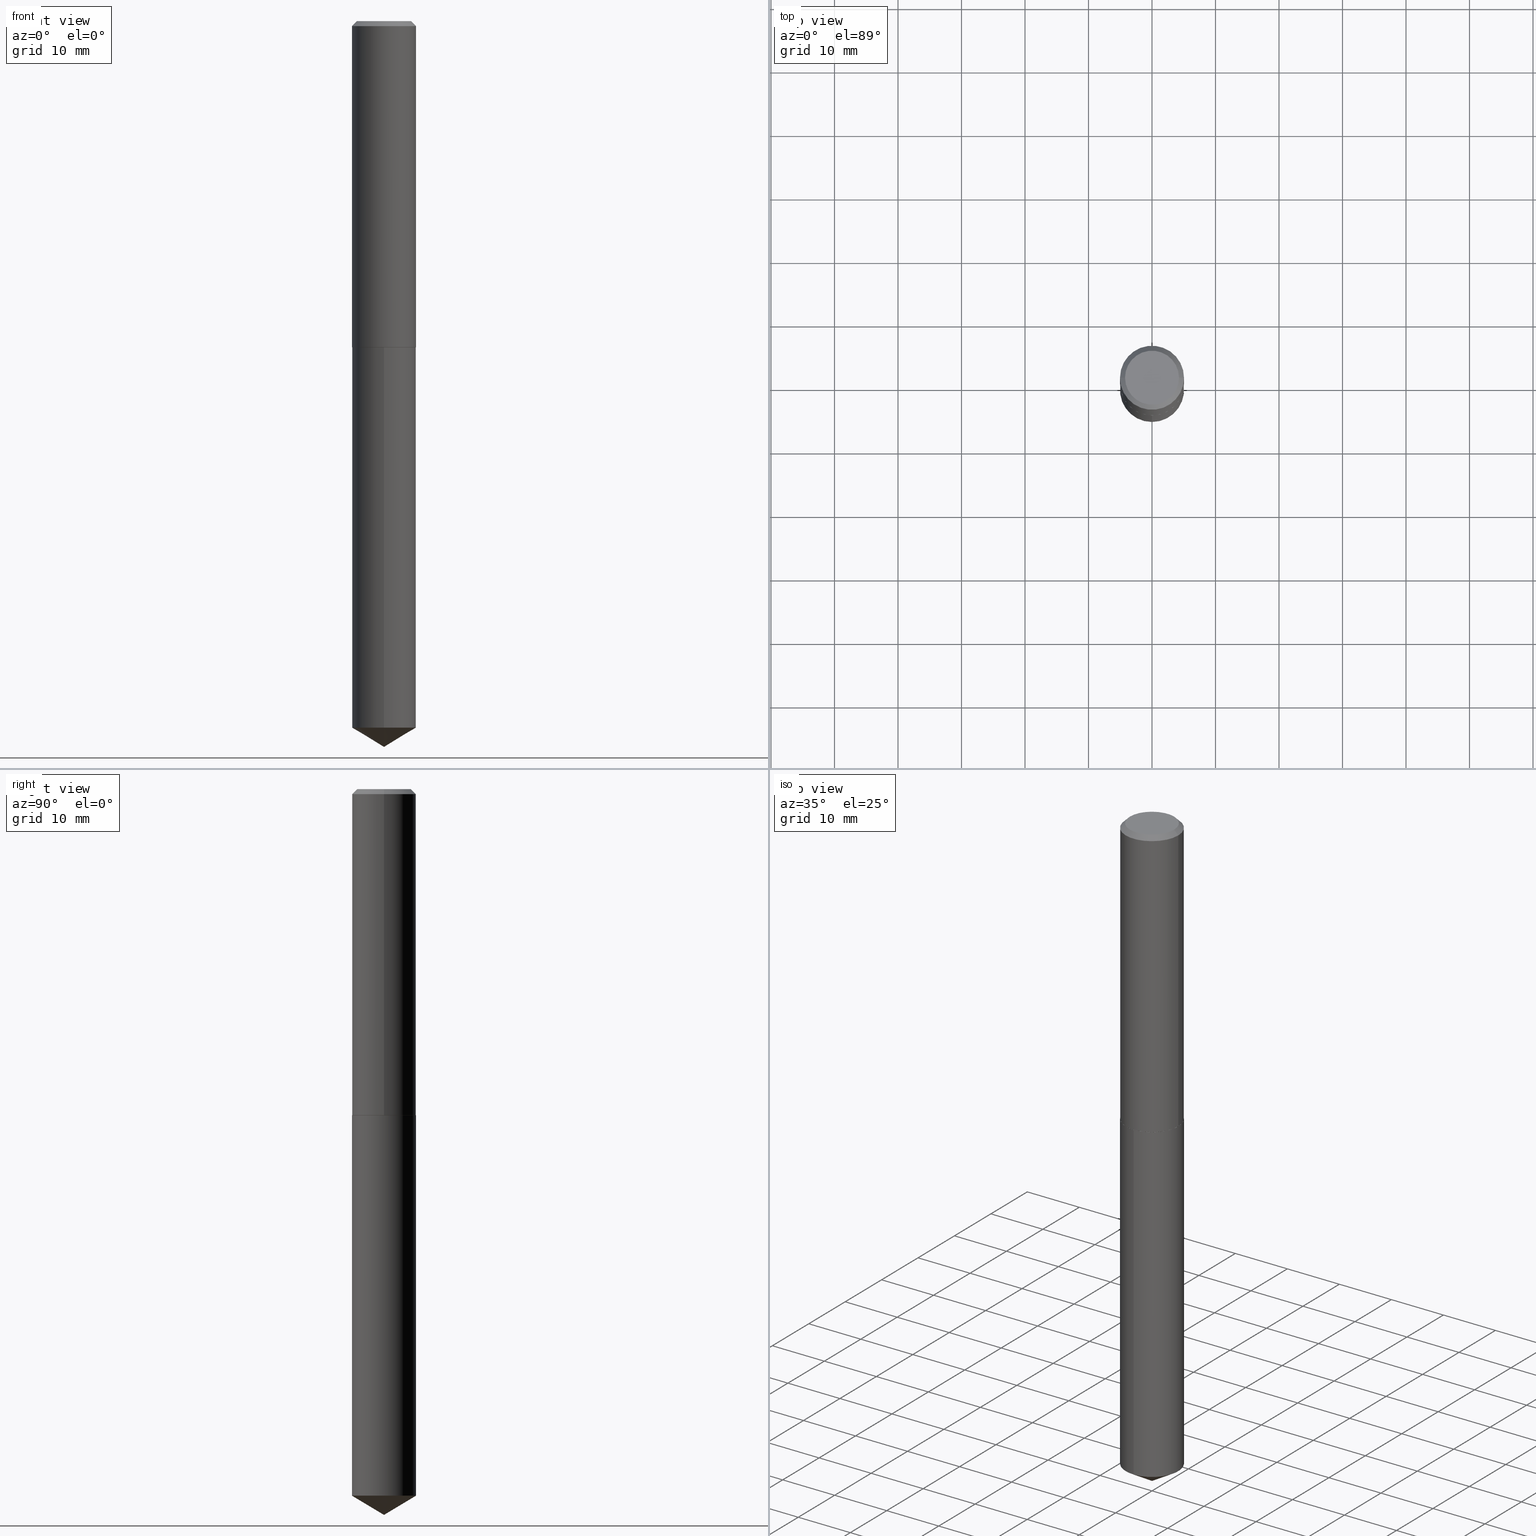
[diagram: canonical four-view strip — front | top / right | iso, engineering-drawing reading convention]
A machine part, canonical four-view strip (front | top / right | iso — engineering-drawing reading convention). The complete STEP part file that produces these views, byte-faithful:
ISO-10303-21;
HEADER;
FILE_DESCRIPTION (( 'STEP AP203' ),
    '1' );
FILE_NAME ('57204.STEP',
    '2024-04-22T23:57:25',
    ( '' ),
    ( '' ),
    'SwSTEP 2.0',
    'SolidWorks 2023',
    '' );
FILE_SCHEMA (( 'CONFIG_CONTROL_DESIGN' ));
ENDSEC;

DATA;
#1 = PERSON_AND_ORGANIZATION_ROLE ( 'creator' ) ;
#2 = VERTEX_POINT ( 'NONE', #85 ) ;
#3 = DIRECTION ( 'NONE',  ( 1.000000000000000000, 0.000000000000000000, 0.000000000000000000 ) ) ;
#4 = CIRCLE ( 'NONE', #323, 0.1985000000000000098 ) ;
#5 = ORIENTED_EDGE ( 'NONE', *, *, #11, .F. ) ;
#6 = VERTEX_POINT ( 'NONE', #364 ) ;
#7 = DIRECTION ( 'NONE',  ( -2.438088387897960049E-29, 3.491481338843145188E-15, 1.000000000000000000 ) ) ;
#8 = CARTESIAN_POINT ( 'NONE',  ( -1.386118091520674425E-15, -0.1985000000000070874, -2.021999999999999797 ) ) ;
#9 = AXIS2_PLACEMENT_3D ( 'NONE', #175, #294, #3 ) ;
#10 = CARTESIAN_POINT ( 'NONE',  ( 4.944737926106347490E-29, -7.059775267140842055E-15, -2.022000000000000242 ) ) ;
#11 = EDGE_CURVE ( 'NONE', #6, #304, #38, .T. ) ;
#12 = DIRECTION ( 'NONE',  ( -2.445399694485218143E-29, 3.491580310731022583E-15, 1.000000000000000000 ) ) ;
#13 = DIRECTION ( 'NONE',  ( -2.445399694485218143E-29, 3.491580310731022583E-15, 1.000000000000000000 ) ) ;
#14 = APPROVAL ( #39, 'UNSPECIFIED' ) ;
#15 = AXIS2_PLACEMENT_3D ( 'NONE', #49, #319, #51 ) ;
#16 = DIRECTION ( 'NONE',  ( -2.445399694485218423E-29, 3.491580310731022583E-15, 1.000000000000000000 ) ) ;
#17 = CARTESIAN_POINT ( 'NONE',  ( 1.100429862518348094E-28, -1.571211139828960300E-14, -4.500000000000000000 ) ) ;
#18 = DIRECTION ( 'NONE',  ( -2.445468806185136597E-29, 3.491481338843145583E-15, 1.000000000000000000 ) ) ;
#19 = AXIS2_PLACEMENT_3D ( 'NONE', #71, #312, #240 ) ;
#20 = AXIS2_PLACEMENT_3D ( 'NONE', #135, #327, #203 ) ;
#21 = DIRECTION ( 'NONE',  ( 1.000000000000000000, -6.982962677686266711E-15, 4.876176775795935232E-29 ) ) ;
#22 = EDGE_CURVE ( 'NONE', #270, #113, #238, .T. ) ;
#23 = DIRECTION ( 'NONE',  ( -0.7071067811864992780, 7.493145998870180611E-15, 0.7071067811865957564 ) ) ;
#24 = MANIFOLD_SOLID_BREP ( 'Body-Move/Copy2[2]', #356 ) ;
#25 = ORIENTED_EDGE ( 'NONE', *, *, #220, .F. ) ;
#26 = VECTOR ( 'NONE', #341, 39.37007874015748143 ) ;
#27 = APPROVAL_STATUS ( 'not_yet_approved' ) ;
#28 = ADVANCED_BREP_SHAPE_REPRESENTATION ( '57204', ( #155, #24, #9 ), #97 ) ;
#29 = EDGE_LOOP ( 'NONE', ( #337, #204, #235, #233 ) ) ;
#30 = DATE_TIME_ROLE ( 'creation_date' ) ;
#31 = VERTEX_POINT ( 'NONE', #309 ) ;
#32 = ORIENTED_EDGE ( 'NONE', *, *, #225, .F. ) ;
#33 = PERSON_AND_ORGANIZATION_ROLE ( 'creator' ) ;
#34 = ORIENTED_EDGE ( 'NONE', *, *, #346, .T. ) ;
#35 = CIRCLE ( 'NONE', #259, 0.1980000000000004534 ) ;
#36 =( CONVERSION_BASED_UNIT ( 'INCH', #62 ) LENGTH_UNIT ( ) NAMED_UNIT ( #277 ) );
#37 = ORGANIZATION ( 'UNSPECIFIED', 'UNSPECIFIED', '' ) ;
#38 = LINE ( 'NONE', #118, #150 ) ;
#39 = APPROVAL_STATUS ( 'not_yet_approved' ) ;
#40 = LINE ( 'NONE', #152, #26 ) ;
#41 = DIRECTION ( 'NONE',  ( -6.982962677686265922E-15, -1.000000000000000000, 2.752491681273816674E-15 ) ) ;
#42 = EDGE_CURVE ( 'NONE', #31, #113, #121, .T. ) ;
#43 = AXIS2_PLACEMENT_3D ( 'NONE', #247, #217, #370 ) ;
#44 = DIRECTION ( 'NONE',  ( -2.445468806185136597E-29, 3.491481338843145583E-15, 1.000000000000000000 ) ) ;
#45 = CIRCLE ( 'NONE', #163, 0.1985000000000002873 ) ;
#46 = CARTESIAN_POINT ( 'NONE',  ( 0.1985000000000002873, -8.444147617992146450E-15, -2.021500000000000519 ) ) ;
#47 = DIRECTION ( 'NONE',  ( -2.445399694485218143E-29, 3.491580310731022583E-15, 1.000000000000000000 ) ) ;
#48 = CARTESIAN_POINT ( 'NONE',  ( 0.000000000000000000, 0.000000000000000000, 0.000000000000000000 ) ) ;
#49 = CARTESIAN_POINT ( 'NONE',  ( -8.527114015399936680E-28, 1.217518804839315575E-13, 34.87007874015748143 ) ) ;
#50 = CARTESIAN_POINT ( 'NONE',  ( -4.791736873455011139E-48, 6.841330313435283607E-34, 1.959434878635801334E-19 ) ) ;
#51 = DIRECTION ( 'NONE',  ( -6.982962677686264344E-15, -1.000000000000000000, 3.468864327941589087E-15 ) ) ;
#52 = CIRCLE ( 'NONE', #253, 0.1672500000000000098 ) ;
#53 = FACE_OUTER_BOUND ( 'NONE', #29, .T. ) ;
#54 = PERSON_AND_ORGANIZATION ( #251, #37 ) ;
#55 = DESIGN_CONTEXT ( 'detailed design', #372, 'design' ) ;
#56 = ORIENTED_EDGE ( 'NONE', *, *, #174, .F. ) ;
#57 = ORIENTED_EDGE ( 'NONE', *, *, #248, .T. ) ;
#58 = ORIENTED_EDGE ( 'NONE', *, *, #108, .T. ) ;
#59 = AXIS2_PLACEMENT_3D ( 'NONE', #315, #101, #381 ) ;
#60 =( LENGTH_UNIT ( ) NAMED_UNIT ( * ) SI_UNIT ( $, .METRE. ) );
#61 = ORIENTED_EDGE ( 'NONE', *, *, #346, .F. ) ;
#62 = LENGTH_MEASURE_WITH_UNIT ( LENGTH_MEASURE( 0.02539999999999999897 ), #60 );
#63 = EDGE_LOOP ( 'NONE', ( #61, #266, #325, #207 ) ) ;
#64 = SECURITY_CLASSIFICATION_LEVEL ( 'unclassified' ) ;
#65 = ORIENTED_EDGE ( 'NONE', *, *, #273, .T. ) ;
#66 = VECTOR ( 'NONE', #252, 39.37007874015748143 ) ;
#67 = CARTESIAN_POINT ( 'NONE',  ( 1.071277351076237585E-28, -1.529546758541459341E-14, -4.380729167123029733 ) ) ;
#68 = CARTESIAN_POINT ( 'NONE',  ( 4.944737926106347490E-29, -7.059775267140842055E-15, -2.022000000000000242 ) ) ;
#69 = APPROVAL ( #27, 'UNSPECIFIED' ) ;
#70 = CARTESIAN_POINT ( 'NONE',  ( 4.944737926106347490E-29, -7.059775267140842055E-15, -2.022000000000000242 ) ) ;
#71 = CARTESIAN_POINT ( 'NONE',  ( 7.642090019328601786E-31, -1.091087918388490144E-16, -0.03125000000000020123 ) ) ;
#72 = LOCAL_TIME ( 19, 57, 25.00000000000000000, #336 ) ;
#73 = DIRECTION ( 'NONE',  ( -0.7071067811865453523, 2.468850131082234184E-15, -0.7071067811865496822 ) ) ;
#74 = CARTESIAN_POINT ( 'NONE',  ( 1.100429862518348094E-28, -1.571211139828960300E-14, -4.500000000000000000 ) ) ;
#75 = FACE_OUTER_BOUND ( 'NONE', #326, .T. ) ;
#76 = VECTOR ( 'NONE', #73, 39.37007874015748143 ) ;
#77 = CIRCLE ( 'NONE', #255, 0.1980000000000004534 ) ;
#78 = FACE_OUTER_BOUND ( 'NONE', #167, .T. ) ;
#79 = DIRECTION ( 'NONE',  ( 1.000000000000000000, -6.982962677686268288E-15, 0.000000000000000000 ) ) ;
#80 = CARTESIAN_POINT ( 'NONE',  ( -1.386118091520674425E-15, -0.1985000000000070874, -2.021999999999999797 ) ) ;
#81 = VECTOR ( 'NONE', #86, 39.37007874015748854 ) ;
#82 = CC_DESIGN_APPROVAL ( #69, ( #236 ) ) ;
#83 = PRODUCT_RELATED_PRODUCT_CATEGORY ( 'detail', '', ( #94 ) ) ;
#84 = VERTEX_POINT ( 'NONE', #243 ) ;
#85 = CARTESIAN_POINT ( 'NONE',  ( -0.1672500000000000098, 1.222454903762451656E-15, 3.918869757188020196E-19 ) ) ;
#86 = DIRECTION ( 'NONE',  ( 6.090539988449780802E-15, 0.8571673007021143320, 0.5150380749100504918 ) ) ;
#87 = EDGE_LOOP ( 'NONE', ( #147, #335 ) ) ;
#88 = APPROVAL_DATE_TIME ( #206, #69 ) ;
#89 = ORIENTED_EDGE ( 'NONE', *, *, #368, .F. ) ;
#90 = ORIENTED_EDGE ( 'NONE', *, *, #119, .F. ) ;
#91 = AXIS2_PLACEMENT_3D ( 'NONE', #67, #12, #280 ) ;
#92 = APPROVAL_ROLE ( '' ) ;
#93 = LINE ( 'NONE', #8, #385 ) ;
#94 = PRODUCT ( '57204', '57204', '', ( #299 ) ) ;
#95 = DIRECTION ( 'NONE',  ( 1.000000000000000000, -6.982962677686267499E-15, 4.876176858485898441E-29 ) ) ;
#96 = LINE ( 'NONE', #348, #351 ) ;
#97 =( GEOMETRIC_REPRESENTATION_CONTEXT ( 3 ) GLOBAL_UNCERTAINTY_ASSIGNED_CONTEXT ( ( #342 ) ) GLOBAL_UNIT_ASSIGNED_CONTEXT ( ( #36, #115, #146 ) ) REPRESENTATION_CONTEXT ( 'NONE', 'WORKASPACE' ) );
#98 = CARTESIAN_POINT ( 'NONE',  ( -0.1980000000000004534, -5.650251423161728870E-15, -2.022000000000000242 ) ) ;
#99 = CIRCLE ( 'NONE', #156, 0.1985000000000000098 ) ;
#100 = EDGE_CURVE ( 'NONE', #306, #263, #331, .T. ) ;
#101 = DIRECTION ( 'NONE',  ( -2.445468806185136597E-29, 3.491481338843145583E-15, 1.000000000000000000 ) ) ;
#102 = CARTESIAN_POINT ( 'NONE',  ( 1.410427330483906421E-15, 0.1984999999999929321, -2.022000000000001130 ) ) ;
#103 = CC_DESIGN_PERSON_AND_ORGANIZATION_ASSIGNMENT ( #208, #179, ( #322 ) ) ;
#104 = DIRECTION ( 'NONE',  ( -2.445399694485218143E-29, 3.491580310731022583E-15, 1.000000000000000000 ) ) ;
#105 = AXIS2_PLACEMENT_3D ( 'NONE', #10, #7, #377 ) ;
#106 = EDGE_CURVE ( 'NONE', #144, #84, #35, .T. ) ;
#107 = CARTESIAN_POINT ( 'NONE',  ( 0.1985000000000000098, -1.470917644396498212E-15, -0.03125000000000020123 ) ) ;
#108 = EDGE_CURVE ( 'NONE', #202, #6, #345, .T. ) ;
#109 = DATE_AND_TIME ( #305, #72 ) ;
#110 = APPLICATION_PROTOCOL_DEFINITION ( 'international standard', 'config_control_design', 1994, #372 ) ;
#111 = ORIENTED_EDGE ( 'NONE', *, *, #290, .F. ) ;
#112 = APPROVAL_DATE_TIME ( #334, #190 ) ;
#113 = VERTEX_POINT ( 'NONE', #314 ) ;
#114 = EDGE_LOOP ( 'NONE', ( #367, #261, #176, #199 ) ) ;
#115 =( NAMED_UNIT ( * ) PLANE_ANGLE_UNIT ( ) SI_UNIT ( $, .RADIAN. ) );
#116 = EDGE_LOOP ( 'NONE', ( #369, #198, #173, #32 ) ) ;
#117 = COORDINATED_UNIVERSAL_TIME_OFFSET ( 5, 0, .BEHIND. ) ;
#118 = CARTESIAN_POINT ( 'NONE',  ( -0.1985000000000001485, 1.410427330483799924E-15, -9.764086154155995580E-30 ) ) ;
#119 = EDGE_CURVE ( 'NONE', #140, #2, #197, .T. ) ;
#120 = FACE_OUTER_BOUND ( 'NONE', #63, .T. ) ;
#121 = CIRCLE ( 'NONE', #91, 0.1985000000000000098 ) ;
#122 = SHAPE_DEFINITION_REPRESENTATION ( #281, #28 ) ;
#123 = APPROVAL_PERSON_ORGANIZATION ( #54, #69, #386 ) ;
#124 = DIRECTION ( 'NONE',  ( 1.000000000000000000, -6.982962677686268288E-15, 0.000000000000000000 ) ) ;
#125 = PERSON_AND_ORGANIZATION ( #251, #37 ) ;
#126 = DIRECTION ( 'NONE',  ( -2.445399694485218143E-29, 3.491580310731022583E-15, 1.000000000000000000 ) ) ;
#127 = PLANE ( 'NONE',  #43 ) ;
#128 = ADVANCED_FACE ( 'NONE', ( #129 ), #149, .T. ) ;
#129 = FACE_OUTER_BOUND ( 'NONE', #116, .T. ) ;
#130 = DIRECTION ( 'NONE',  ( -2.445468806185136597E-29, 3.491481338843145583E-15, 1.000000000000000000 ) ) ;
#131 = LINE ( 'NONE', #17, #363 ) ;
#132 = LINE ( 'NONE', #107, #66 ) ;
#133 = CARTESIAN_POINT ( 'NONE',  ( 7.642090019328601786E-31, -1.091087918388490144E-16, -0.03125000000000020123 ) ) ;
#134 = CARTESIAN_POINT ( 'NONE',  ( 4.944737926106347490E-29, -7.059775267140842055E-15, -2.022000000000000242 ) ) ;
#135 = CARTESIAN_POINT ( 'NONE',  ( 4.943515191703255249E-29, -7.058029526471420552E-15, -2.021500000000000519 ) ) ;
#136 = EDGE_LOOP ( 'NONE', ( #5, #65, #143, #89 ) ) ;
#137 = AXIS2_PLACEMENT_3D ( 'NONE', #212, #373, #154 ) ;
#138 = PRODUCT_DEFINITION_FORMATION_WITH_SPECIFIED_SOURCE ( 'ANY', '', #94, .NOT_KNOWN. ) ;
#139 = CALENDAR_DATE ( 2024, 22, 4 ) ;
#140 = VERTEX_POINT ( 'NONE', #182 ) ;
#141 = EDGE_CURVE ( 'NONE', #84, #202, #40, .T. ) ;
#142 = ORIENTED_EDGE ( 'NONE', *, *, #303, .T. ) ;
#143 = ORIENTED_EDGE ( 'NONE', *, *, #220, .T. ) ;
#144 = VERTEX_POINT ( 'NONE', #98 ) ;
#145 = AXIS2_PLACEMENT_3D ( 'NONE', #50, #160, #256 ) ;
#146 =( NAMED_UNIT ( * ) SI_UNIT ( $, .STERADIAN. ) SOLID_ANGLE_UNIT ( ) );
#147 = ORIENTED_EDGE ( 'NONE', *, *, #178, .T. ) ;
#148 = DIRECTION ( 'NONE',  ( -2.445468806185136877E-29, 3.491481338843145188E-15, 1.000000000000000000 ) ) ;
#149 = CYLINDRICAL_SURFACE ( 'NONE', #241, 0.1985000000000000098 ) ;
#150 = VECTOR ( 'NONE', #201, 39.37007874015748143 ) ;
#151 = APPROVAL_PERSON_ORGANIZATION ( #125, #14, #92 ) ;
#152 = CARTESIAN_POINT ( 'NONE',  ( 0.1985000000000002873, -8.444147617992146450E-15, -2.021500000000000519 ) ) ;
#153 = FACE_OUTER_BOUND ( 'NONE', #87, .T. ) ;
#154 = DIRECTION ( 'NONE',  ( 1.000000000000000000, -6.982962677686266711E-15, 0.000000000000000000 ) ) ;
#155 = MANIFOLD_SOLID_BREP ( 'Body-Move/Copy2[1]', #338 ) ;
#156 = AXIS2_PLACEMENT_3D ( 'NONE', #189, #13, #41 ) ;
#157 = FACE_OUTER_BOUND ( 'NONE', #229, .T. ) ;
#158 = CC_DESIGN_PERSON_AND_ORGANIZATION_ASSIGNMENT ( #302, #33, ( #138 ) ) ;
#159 = ADVANCED_FACE ( 'NONE', ( #249 ), #344, .F. ) ;
#160 = DIRECTION ( 'NONE',  ( 2.438088387897960049E-29, -3.491481338843145188E-15, -1.000000000000000000 ) ) ;
#161 = PLANE ( 'NONE',  #145 ) ;
#162 = CYLINDRICAL_SURFACE ( 'NONE', #296, 0.1985000000000001485 ) ;
#163 = AXIS2_PLACEMENT_3D ( 'NONE', #191, #195, #285 ) ;
#164 = CC_DESIGN_DATE_AND_TIME_ASSIGNMENT ( #109, #227, ( #322 ) ) ;
#165 = DIRECTION ( 'NONE',  ( -5.985567269335945224E-15, -0.8571673007021107793, 0.5150380749100564870 ) ) ;
#166 = EDGE_CURVE ( 'NONE', #2, #140, #52, .T. ) ;
#167 = EDGE_LOOP ( 'NONE', ( #111, #169, #265 ) ) ;
#168 = PERSON_AND_ORGANIZATION ( #251, #37 ) ;
#169 = ORIENTED_EDGE ( 'NONE', *, *, #22, .T. ) ;
#170 = PERSON_AND_ORGANIZATION ( #251, #37 ) ;
#171 = ORIENTED_EDGE ( 'NONE', *, *, #166, .T. ) ;
#172 = VECTOR ( 'NONE', #148, 39.37007874015748143 ) ;
#173 = ORIENTED_EDGE ( 'NONE', *, *, #178, .F. ) ;
#174 = EDGE_CURVE ( 'NONE', #2, #304, #339, .T. ) ;
#175 = CARTESIAN_POINT ( 'NONE',  ( 0.000000000000000000, 0.000000000000000000, 0.000000000000000000 ) ) ;
#176 = ORIENTED_EDGE ( 'NONE', *, *, #225, .T. ) ;
#177 = VERTEX_POINT ( 'NONE', #343 ) ;
#178 = EDGE_CURVE ( 'NONE', #263, #306, #295, .T. ) ;
#179 = PERSON_AND_ORGANIZATION_ROLE ( 'classification_officer' ) ;
#180 = EDGE_CURVE ( 'NONE', #113, #306, #96, .T. ) ;
#181 = CONICAL_SURFACE ( 'NONE', #15, 65.52281426576853107, 1.029744258676655200 ) ;
#182 = CARTESIAN_POINT ( 'NONE',  ( 0.1672500000000000098, -1.309167967261893481E-15, 3.918869757358212700E-19 ) ) ;
#183 = CARTESIAN_POINT ( 'NONE',  ( -9.583473746910022278E-48, 1.368266062687056721E-33, 3.918869757271602667E-19 ) ) ;
#184 = DIRECTION ( 'NONE',  ( -2.445399694485218143E-29, 3.491580310731022583E-15, 1.000000000000000000 ) ) ;
#185 = CONICAL_SURFACE ( 'NONE', #19, 0.1985000000000000098, 0.7853981633974452814 ) ;
#186 = CC_DESIGN_APPROVAL ( #14, ( #322 ) ) ;
#187 = ADVANCED_FACE ( 'NONE', ( #120 ), #185, .T. ) ;
#188 = DIRECTION ( 'NONE',  ( -2.445468806185136597E-29, 3.491481338843145583E-15, 1.000000000000000000 ) ) ;
#189 = CARTESIAN_POINT ( 'NONE',  ( 1.071277351076237585E-28, -1.529546758541459341E-14, -4.380729167123029733 ) ) ;
#190 = APPROVAL ( #232, 'UNSPECIFIED' ) ;
#191 = CARTESIAN_POINT ( 'NONE',  ( 4.943515191703255249E-29, -7.058029526471420552E-15, -2.021500000000000519 ) ) ;
#192 = AXIS2_PLACEMENT_3D ( 'NONE', #183, #44, #95 ) ;
#193 = CYLINDRICAL_SURFACE ( 'NONE', #211, 0.1985000000000001485 ) ;
#194 = CYLINDRICAL_SURFACE ( 'NONE', #269, 0.1985000000000000098 ) ;
#195 = DIRECTION ( 'NONE',  ( -2.445468806185136597E-29, 3.491481338843145583E-15, 1.000000000000000000 ) ) ;
#196 = FACE_OUTER_BOUND ( 'NONE', #114, .T. ) ;
#197 = CIRCLE ( 'NONE', #192, 0.1672500000000000098 ) ;
#198 = ORIENTED_EDGE ( 'NONE', *, *, #180, .T. ) ;
#199 = ORIENTED_EDGE ( 'NONE', *, *, #100, .F. ) ;
#200 = CALENDAR_DATE ( 2024, 22, 4 ) ;
#201 = DIRECTION ( 'NONE',  ( -2.445468806185136877E-29, 3.491481338843145188E-15, 1.000000000000000000 ) ) ;
#202 = VERTEX_POINT ( 'NONE', #46 ) ;
#203 = DIRECTION ( 'NONE',  ( 1.000000000000000000, -6.982962677686266711E-15, 0.000000000000000000 ) ) ;
#204 = ORIENTED_EDGE ( 'NONE', *, *, #106, .T. ) ;
#205 = CONICAL_SURFACE ( 'NONE', #20, 0.1985000000000002873, 0.7853981633973801113 ) ;
#206 = DATE_AND_TIME ( #139, #316 ) ;
#207 = ORIENTED_EDGE ( 'NONE', *, *, #368, .T. ) ;
#208 = PERSON_AND_ORGANIZATION ( #251, #37 ) ;
#209 = ORIENTED_EDGE ( 'NONE', *, *, #303, .F. ) ;
#210 = LINE ( 'NONE', #308, #172 ) ;
#211 = AXIS2_PLACEMENT_3D ( 'NONE', #48, #18, #354 ) ;
#212 = CARTESIAN_POINT ( 'NONE',  ( 4.943515191703255249E-29, -7.058029526471420552E-15, -2.021500000000000519 ) ) ;
#213 = CARTESIAN_POINT ( 'NONE',  ( -9.583473746910022278E-48, 1.368266062687056721E-33, 3.918869757271602667E-19 ) ) ;
#214 = ADVANCED_FACE ( 'NONE', ( #153 ), #127, .F. ) ;
#215 = EDGE_CURVE ( 'NONE', #113, #31, #99, .T. ) ;
#216 = DIRECTION ( 'NONE',  ( -2.445399694485218423E-29, 3.491580310731022583E-15, 1.000000000000000000 ) ) ;
#217 = DIRECTION ( 'NONE',  ( 2.445399694485217863E-29, -3.491580310731022583E-15, -1.000000000000000000 ) ) ;
#218 = CC_DESIGN_DATE_AND_TIME_ASSIGNMENT ( #262, #30, ( #236 ) ) ;
#219 = CARTESIAN_POINT ( 'NONE',  ( 4.944737926106347490E-29, -7.059775267140842055E-15, -2.022000000000000242 ) ) ;
#220 = EDGE_CURVE ( 'NONE', #202, #177, #210, .T. ) ;
#221 = DIRECTION ( 'NONE',  ( -2.445468806185136597E-29, 3.491481338843145583E-15, 1.000000000000000000 ) ) ;
#222 = LOCAL_TIME ( 19, 57, 25.00000000000000000, #267 ) ;
#223 = DIRECTION ( 'NONE',  ( -2.445468806185136597E-29, 3.491481338843145583E-15, 1.000000000000000000 ) ) ;
#224 = DIRECTION ( 'NONE',  ( -2.445399694485218143E-29, 3.491580310731022583E-15, 1.000000000000000000 ) ) ;
#225 = EDGE_CURVE ( 'NONE', #31, #263, #93, .T. ) ;
#226 = CARTESIAN_POINT ( 'NONE',  ( -0.1985000000000000098, -2.173141828671334310E-15, -0.03125000000000020123 ) ) ;
#227 = DATE_TIME_ROLE ( 'classification_date' ) ;
#228 = CONICAL_SURFACE ( 'NONE', #59, 0.1985000000000002873, 0.7853981633973801113 ) ;
#229 = EDGE_LOOP ( 'NONE', ( #90, #34, #142, #56 ) ) ;
#230 = ORIENTED_EDGE ( 'NONE', *, *, #119, .T. ) ;
#231 = ORIENTED_EDGE ( 'NONE', *, *, #11, .T. ) ;
#232 = APPROVAL_STATUS ( 'not_yet_approved' ) ;
#233 = ORIENTED_EDGE ( 'NONE', *, *, #273, .F. ) ;
#234 = PERSON_AND_ORGANIZATION ( #251, #37 ) ;
#235 = ORIENTED_EDGE ( 'NONE', *, *, #141, .T. ) ;
#236 = PRODUCT_DEFINITION ( 'UNKNOWN', '', #138, #55 ) ;
#237 = ADVANCED_FACE ( 'NONE', ( #196 ), #194, .T. ) ;
#238 = LINE ( 'NONE', #328, #81 ) ;
#239 = DATE_AND_TIME ( #313, #380 ) ;
#240 = DIRECTION ( 'NONE',  ( -1.000000000000000000, 6.982962677686265922E-15, 0.000000000000000000 ) ) ;
#241 = AXIS2_PLACEMENT_3D ( 'NONE', #375, #184, #274 ) ;
#242 = AXIS2_PLACEMENT_3D ( 'NONE', #317, #221, #289 ) ;
#243 = CARTESIAN_POINT ( 'NONE',  ( 0.1980000000000004534, -8.442401877322725736E-15, -2.022000000000000242 ) ) ;
#244 = ADVANCED_FACE ( 'NONE', ( #78 ), #181, .T. ) ;
#245 = DIRECTION ( 'NONE',  ( -6.982962677686265922E-15, -1.000000000000000000, 4.128737521910725011E-15 ) ) ;
#246 = APPROVAL_DATE_TIME ( #239, #14 ) ;
#247 = CARTESIAN_POINT ( 'NONE',  ( 4.944737926106347490E-29, -7.059775267140842055E-15, -2.022000000000000242 ) ) ;
#248 = EDGE_CURVE ( 'NONE', #144, #6, #350, .T. ) ;
#249 = FACE_OUTER_BOUND ( 'NONE', #390, .T. ) ;
#250 = DIRECTION ( 'NONE',  ( 1.000000000000000000, -6.982962677686265922E-15, 0.000000000000000000 ) ) ;
#251 = PERSON ( 'UNSPECIFIED', 'UNSPECIFIED', 'UNSPECIFIED', ('UNSPECIFIED'), ('UNSPECIFIED'), ('UNSPECIFIED') ) ;
#252 = DIRECTION ( 'NONE',  ( 0.7071067811865453523, -7.319954787623248157E-15, -0.7071067811865496822 ) ) ;
#253 = AXIS2_PLACEMENT_3D ( 'NONE', #213, #188, #271 ) ;
#254 = ADVANCED_FACE ( 'NONE', ( #258 ), #161, .F. ) ;
#255 = AXIS2_PLACEMENT_3D ( 'NONE', #219, #223, #79 ) ;
#256 = DIRECTION ( 'NONE',  ( -1.000000000000000000, 6.982962677686265922E-15, -4.876176775795935793E-29 ) ) ;
#257 = DIRECTION ( 'NONE',  ( -1.000000000000000000, 6.982962677686265922E-15, 0.000000000000000000 ) ) ;
#258 = FACE_OUTER_BOUND ( 'NONE', #292, .T. ) ;
#259 = AXIS2_PLACEMENT_3D ( 'NONE', #70, #310, #124 ) ;
#260 = AXIS2_PLACEMENT_3D ( 'NONE', #379, #224, #353 ) ;
#261 = ORIENTED_EDGE ( 'NONE', *, *, #215, .T. ) ;
#262 = DATE_AND_TIME ( #200, #352 ) ;
#263 = VERTEX_POINT ( 'NONE', #80 ) ;
#264 = APPLICATION_PROTOCOL_DEFINITION ( 'international standard', 'config_control_design', 1994, #329 ) ;
#265 = ORIENTED_EDGE ( 'NONE', *, *, #42, .F. ) ;
#266 = ORIENTED_EDGE ( 'NONE', *, *, #166, .F. ) ;
#267 = COORDINATED_UNIVERSAL_TIME_OFFSET ( 5, 0, .BEHIND. ) ;
#268 = ORIENTED_EDGE ( 'NONE', *, *, #106, .F. ) ;
#269 = AXIS2_PLACEMENT_3D ( 'NONE', #134, #104, #283 ) ;
#270 = VERTEX_POINT ( 'NONE', #74 ) ;
#271 = DIRECTION ( 'NONE',  ( 1.000000000000000000, -6.982962677686267499E-15, 4.876176858485898441E-29 ) ) ;
#272 = CC_DESIGN_PERSON_AND_ORGANIZATION_ASSIGNMENT ( #170, #383, ( #94 ) ) ;
#273 = EDGE_CURVE ( 'NONE', #6, #202, #45, .T. ) ;
#274 = DIRECTION ( 'NONE',  ( -6.982962677686265922E-15, -1.000000000000000000, 4.128737521910725011E-15 ) ) ;
#275 = AXIS2_PLACEMENT_3D ( 'NONE', #68, #126, #245 ) ;
#276 = CC_DESIGN_APPROVAL ( #190, ( #138 ) ) ;
#277 = DIMENSIONAL_EXPONENTS ( 1.000000000000000000, 0.000000000000000000, 0.000000000000000000, 0.000000000000000000, 0.000000000000000000, 0.000000000000000000, 0.000000000000000000 ) ;
#278 = CARTESIAN_POINT ( 'NONE',  ( -0.1985000000000000098, 1.277009299681874826E-15, -0.03125000000000020123 ) ) ;
#279 = CARTESIAN_POINT ( 'NONE',  ( 4.944737926106347490E-29, -7.059775267140842055E-15, -2.022000000000000242 ) ) ;
#280 = DIRECTION ( 'NONE',  ( -6.982962677686265922E-15, -1.000000000000000000, 2.752491681273816674E-15 ) ) ;
#281 = PRODUCT_DEFINITION_SHAPE ( 'NONE', 'NONE',  #236 ) ;
#282 = DIRECTION ( 'NONE',  ( 2.445468806185136597E-29, -3.491481338843145583E-15, -1.000000000000000000 ) ) ;
#283 = DIRECTION ( 'NONE',  ( -6.982962677686265922E-15, -1.000000000000000000, 4.128737521910725011E-15 ) ) ;
#284 = ADVANCED_FACE ( 'NONE', ( #75 ), #193, .T. ) ;
#285 = DIRECTION ( 'NONE',  ( 1.000000000000000000, -6.982962677686266711E-15, 0.000000000000000000 ) ) ;
#286 = ADVANCED_FACE ( 'NONE', ( #288 ), #228, .T. ) ;
#287 = CONICAL_SURFACE ( 'NONE', #376, 0.1985000000000000098, 0.7853981633974452814 ) ;
#288 = FACE_OUTER_BOUND ( 'NONE', #297, .T. ) ;
#289 = DIRECTION ( 'NONE',  ( 1.000000000000000000, -6.982962677686265922E-15, 0.000000000000000000 ) ) ;
#290 = EDGE_CURVE ( 'NONE', #270, #31, #131, .T. ) ;
#291 = COORDINATED_UNIVERSAL_TIME_OFFSET ( 5, 0, .BEHIND. ) ;
#292 = EDGE_LOOP ( 'NONE', ( #171, #230 ) ) ;
#293 = CC_DESIGN_SECURITY_CLASSIFICATION ( #322, ( #138 ) ) ;
#294 = DIRECTION ( 'NONE',  ( 0.000000000000000000, 0.000000000000000000, 1.000000000000000000 ) ) ;
#295 = CIRCLE ( 'NONE', #275, 0.1985000000000000098 ) ;
#296 = AXIS2_PLACEMENT_3D ( 'NONE', #378, #130, #21 ) ;
#297 = EDGE_LOOP ( 'NONE', ( #387, #57, #298, #365 ) ) ;
#298 = ORIENTED_EDGE ( 'NONE', *, *, #108, .F. ) ;
#299 = MECHANICAL_CONTEXT ( 'NONE', #329, 'mechanical' ) ;
#300 = ORIENTED_EDGE ( 'NONE', *, *, #215, .F. ) ;
#301 = ORIENTED_EDGE ( 'NONE', *, *, #22, .F. ) ;
#302 = PERSON_AND_ORGANIZATION ( #251, #37 ) ;
#303 = EDGE_CURVE ( 'NONE', #177, #304, #311, .T. ) ;
#304 = VERTEX_POINT ( 'NONE', #226 ) ;
#305 = CALENDAR_DATE ( 2024, 22, 4 ) ;
#306 = VERTEX_POINT ( 'NONE', #102 ) ;
#307 = APPROVAL_PERSON_ORGANIZATION ( #168, #190, #389 ) ;
#308 = CARTESIAN_POINT ( 'NONE',  ( 0.1985000000000001485, -1.386118091520724912E-15, 9.679210899954938883E-30 ) ) ;
#309 = CARTESIAN_POINT ( 'NONE',  ( -1.386118091520616444E-15, -0.1985000000000152753, -4.380729167123028844 ) ) ;
#310 = DIRECTION ( 'NONE',  ( -2.445468806185136597E-29, 3.491481338843145583E-15, 1.000000000000000000 ) ) ;
#311 = CIRCLE ( 'NONE', #242, 0.1985000000000000098 ) ;
#312 = DIRECTION ( 'NONE',  ( 2.445468806185136597E-29, -3.491481338843145583E-15, -1.000000000000000000 ) ) ;
#313 = CALENDAR_DATE ( 2024, 22, 4 ) ;
#314 = CARTESIAN_POINT ( 'NONE',  ( 1.410427330483905632E-15, 0.1984999999999846887, -4.380729167123029733 ) ) ;
#315 = CARTESIAN_POINT ( 'NONE',  ( 4.943515191703255249E-29, -7.058029526471420552E-15, -2.021500000000000519 ) ) ;
#316 = LOCAL_TIME ( 19, 57, 25.00000000000000000, #291 ) ;
#317 = CARTESIAN_POINT ( 'NONE',  ( 7.642090019328601786E-31, -1.091087918388490144E-16, -0.03125000000000020123 ) ) ;
#318 = EDGE_CURVE ( 'NONE', #84, #144, #77, .T. ) ;
#319 = DIRECTION ( 'NONE',  ( -2.445399694485218143E-29, 3.491580310731022583E-15, 1.000000000000000000 ) ) ;
#320 = FACE_OUTER_BOUND ( 'NONE', #359, .T. ) ;
#321 = CC_DESIGN_PERSON_AND_ORGANIZATION_ASSIGNMENT ( #234, #366, ( #138 ) ) ;
#322 = SECURITY_CLASSIFICATION ( '', '', #64 ) ;
#323 = AXIS2_PLACEMENT_3D ( 'NONE', #324, #382, #250 ) ;
#324 = CARTESIAN_POINT ( 'NONE',  ( 7.642090019328601786E-31, -1.091087918388490144E-16, -0.03125000000000020123 ) ) ;
#325 = ORIENTED_EDGE ( 'NONE', *, *, #174, .T. ) ;
#326 = EDGE_LOOP ( 'NONE', ( #58, #231, #209, #25 ) ) ;
#327 = DIRECTION ( 'NONE',  ( -2.445468806185136597E-29, 3.491481338843145583E-15, 1.000000000000000000 ) ) ;
#328 = CARTESIAN_POINT ( 'NONE',  ( 1.100458056367529934E-28, -1.571171115597503095E-14, -4.500000000000000000 ) ) ;
#329 = APPLICATION_CONTEXT ( 'configuration controlled 3d designs of mechanical parts and assemblies' ) ;
#330 = PERSON_AND_ORGANIZATION ( #251, #37 ) ;
#331 = CIRCLE ( 'NONE', #384, 0.1985000000000000098 ) ;
#332 = VECTOR ( 'NONE', #23, 39.37007874015748143 ) ;
#333 = ORIENTED_EDGE ( 'NONE', *, *, #290, .T. ) ;
#334 = DATE_AND_TIME ( #358, #222 ) ;
#335 = ORIENTED_EDGE ( 'NONE', *, *, #100, .T. ) ;
#336 = COORDINATED_UNIVERSAL_TIME_OFFSET ( 5, 0, .BEHIND. ) ;
#337 = ORIENTED_EDGE ( 'NONE', *, *, #248, .F. ) ;
#338 = CLOSED_SHELL ( 'NONE', ( #128, #244, #347, #237, #214 ) ) ;
#339 = LINE ( 'NONE', #278, #76 ) ;
#340 = CONICAL_SURFACE ( 'NONE', #260, 65.52281426576853107, 1.029744258676655200 ) ;
#341 = DIRECTION ( 'NONE',  ( 0.7071067811864992780, -2.468850131081751401E-15, 0.7071067811865957564 ) ) ;
#342 = UNCERTAINTY_MEASURE_WITH_UNIT (LENGTH_MEASURE( 1.000000000000000082E-05 ), #36, 'distance_accuracy_value', 'NONE');
#343 = CARTESIAN_POINT ( 'NONE',  ( 0.1985000000000000098, -1.495226883359573027E-15, -0.03125000000000020123 ) ) ;
#344 = PLANE ( 'NONE',  #105 ) ;
#345 = CIRCLE ( 'NONE', #137, 0.1985000000000002873 ) ;
#346 = EDGE_CURVE ( 'NONE', #140, #177, #132, .T. ) ;
#347 = ADVANCED_FACE ( 'NONE', ( #320 ), #340, .T. ) ;
#348 = CARTESIAN_POINT ( 'NONE',  ( 1.410427330483848242E-15, 0.1984999999999929321, -2.022000000000001130 ) ) ;
#349 = FACE_OUTER_BOUND ( 'NONE', #136, .T. ) ;
#350 = LINE ( 'NONE', #355, #332 ) ;
#351 = VECTOR ( 'NONE', #216, 39.37007874015748143 ) ;
#352 = LOCAL_TIME ( 19, 57, 25.00000000000000000, #360 ) ;
#353 = DIRECTION ( 'NONE',  ( -6.982962677686264344E-15, -1.000000000000000000, 3.468864327941589087E-15 ) ) ;
#354 = DIRECTION ( 'NONE',  ( 1.000000000000000000, -6.982962677686266711E-15, 4.876176775795935232E-29 ) ) ;
#355 = CARTESIAN_POINT ( 'NONE',  ( -0.1985000000000002873, -5.647602195987619247E-15, -2.021500000000000519 ) ) ;
#356 = CLOSED_SHELL ( 'NONE', ( #362, #284, #286, #159, #374, #357, #187, #254 ) ) ;
#357 = ADVANCED_FACE ( 'NONE', ( #349 ), #162, .T. ) ;
#358 = CALENDAR_DATE ( 2024, 22, 4 ) ;
#359 = EDGE_LOOP ( 'NONE', ( #301, #333, #300 ) ) ;
#360 = COORDINATED_UNIVERSAL_TIME_OFFSET ( 5, 0, .BEHIND. ) ;
#361 = ORIENTED_EDGE ( 'NONE', *, *, #318, .F. ) ;
#362 = ADVANCED_FACE ( 'NONE', ( #157 ), #287, .T. ) ;
#363 = VECTOR ( 'NONE', #165, 39.37007874015748854 ) ;
#364 = CARTESIAN_POINT ( 'NONE',  ( -0.1985000000000002873, -5.647602195987619247E-15, -2.021500000000000519 ) ) ;
#365 = ORIENTED_EDGE ( 'NONE', *, *, #141, .F. ) ;
#366 = PERSON_AND_ORGANIZATION_ROLE ( 'design_supplier' ) ;
#367 = ORIENTED_EDGE ( 'NONE', *, *, #180, .F. ) ;
#368 = EDGE_CURVE ( 'NONE', #304, #177, #4, .T. ) ;
#369 = ORIENTED_EDGE ( 'NONE', *, *, #42, .T. ) ;
#370 = DIRECTION ( 'NONE',  ( 6.982962677686265922E-15, 1.000000000000000000, -3.491580310731022583E-15 ) ) ;
#371 = DIRECTION ( 'NONE',  ( -6.982962677686265922E-15, -1.000000000000000000, 4.128737521910725011E-15 ) ) ;
#372 = APPLICATION_CONTEXT ( 'configuration controlled 3d designs of mechanical parts and assemblies' ) ;
#373 = DIRECTION ( 'NONE',  ( -2.445468806185136597E-29, 3.491481338843145583E-15, 1.000000000000000000 ) ) ;
#374 = ADVANCED_FACE ( 'NONE', ( #53 ), #205, .T. ) ;
#375 = CARTESIAN_POINT ( 'NONE',  ( 4.944737926106347490E-29, -7.059775267140842055E-15, -2.022000000000000242 ) ) ;
#376 = AXIS2_PLACEMENT_3D ( 'NONE', #133, #282, #257 ) ;
#377 = DIRECTION ( 'NONE',  ( 1.000000000000000000, -6.982962677686265922E-15, 4.876176775795935793E-29 ) ) ;
#378 = CARTESIAN_POINT ( 'NONE',  ( 0.000000000000000000, 0.000000000000000000, 0.000000000000000000 ) ) ;
#379 = CARTESIAN_POINT ( 'NONE',  ( -8.527114015399936680E-28, 1.217518804839315575E-13, 34.87007874015748143 ) ) ;
#380 = LOCAL_TIME ( 19, 57, 25.00000000000000000, #117 ) ;
#381 = DIRECTION ( 'NONE',  ( 1.000000000000000000, -6.982962677686266711E-15, 0.000000000000000000 ) ) ;
#382 = DIRECTION ( 'NONE',  ( -2.445468806185136597E-29, 3.491481338843145583E-15, 1.000000000000000000 ) ) ;
#383 = PERSON_AND_ORGANIZATION_ROLE ( 'design_owner' ) ;
#384 = AXIS2_PLACEMENT_3D ( 'NONE', #279, #47, #371 ) ;
#385 = VECTOR ( 'NONE', #16, 39.37007874015748143 ) ;
#386 = APPROVAL_ROLE ( '' ) ;
#387 = ORIENTED_EDGE ( 'NONE', *, *, #318, .T. ) ;
#388 = CC_DESIGN_PERSON_AND_ORGANIZATION_ASSIGNMENT ( #330, #1, ( #236 ) ) ;
#389 = APPROVAL_ROLE ( '' ) ;
#390 = EDGE_LOOP ( 'NONE', ( #361, #268 ) ) ;
ENDSEC;
END-ISO-10303-21;
